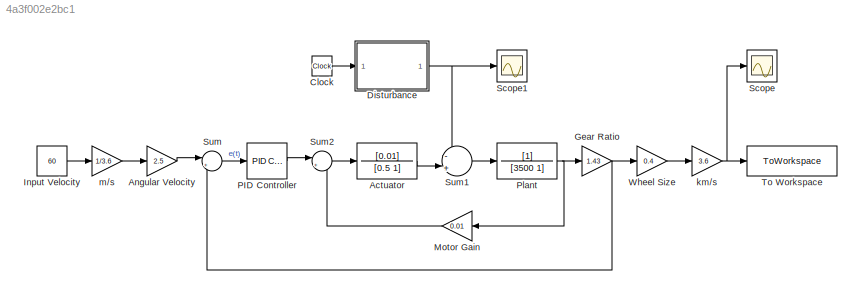
MODEL slx_4a3f002e2bc1
KIND model
CONFIG AbsTol = auto
CONFIG EnableMultiTasking = off
CONFIG FixedStep = auto
CONFIG MaxStep = auto
CONFIG MinStep = auto
CONFIG RelTol = 1e-3
CONFIG SampleTimeConstraint = Unconstrained
CONFIG SolverName = VariableStepAuto
CONFIG StartTime = 0.0
CONFIG StopTime = 20
BLOCK [TransferFcn] Actuator
  Denominator = [0.5 1]
  Numerator = [0.01]
BLOCK [Gain] Angular Velocity
  Gain = 2.5
BLOCK [Clock] Clock
  DisplayTime = on
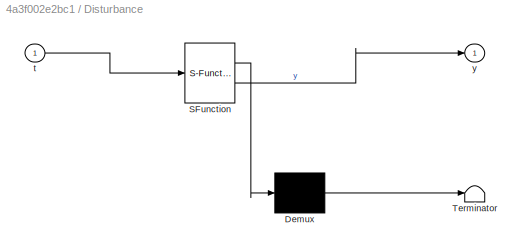
BLOCK [SubSystem] Disturbance
  ErrorFcn = Stateflow.Translate.translate
  PermitHierarchicalResolution = ExplicitOnly
  Ports = [1, 1]
  RequestExecContextInheritance = off
  SFBlockType = MATLAB Function
  TreatAsAtomicUnit = on
BLOCK [Demux] Disturbance/ Demux 
  Outputs = 1
  Ports = [1, 1]
BLOCK [S-Function] Disturbance/ SFunction 
  EnableBusSupport = on
  FunctionName = sf_sfun
  PortCounts = [1 2]
  Ports = [1, 2]
  SFcnIsStateOwnerBlock = off
  SFunctionDeploymentMode = off
  Tag = Stateflow S-Function 2
BLOCK [Terminator] Disturbance/ Terminator 
BLOCK [Inport] Disturbance/t
BLOCK [Outport] Disturbance/y
BLOCK [Gain] Gear Ratio
  Gain = 1.43
BLOCK [Constant] Input Velocity
  Value = 60
BLOCK [Gain] Motor Gain
  Gain = 0.01
BLOCK [Reference] PID Controller  REF=pid_lib/PID Controller
  Ports = [1, 1]
  SourceBlock = pid_lib/PID Controller
  SourceProductBaseCode = SL
  SourceType = PID 1dof
BLOCK [TransferFcn] Plant
  Denominator = [3500 1]
BLOCK [Scope] Scope
  Floating = off
  NumInputPorts = 1
  Ports = [1]
  ScopeSpecificationString = Simulink.scopes.TimeScopeBlockCfg('CurrentConfiguration', extmgr.ConfigurationSet(extmgr.Configuration('Core','General UI',true),extmgr.Configuration('Core','Source UI',true),extmgr.Configuration('Sources','WiredSimulink',true),extmgr.Configuration('Visuals','Time Domain',true,'SerializedDisplays',{struct('MinYLimReal','-44.23701','MaxYLimReal','27.84897','YLabelReal','','MinYLimMag','0.00000','Ma...<+1404ch>
BLOCK [Scope] Scope1
  Floating = off
  NumInputPorts = 1
  Ports = [1]
  ScopeSpecificationString = Simulink.scopes.TimeScopeBlockCfg('CurrentConfiguration', extmgr.ConfigurationSet(extmgr.Configuration('Core','General UI',true),extmgr.Configuration('Core','Source UI',true),extmgr.Configuration('Sources','WiredSimulink',true,'DataLoggingVariableName','ScopeData1'),extmgr.Configuration('Visuals','Time Domain',true,'SerializedDisplays',{struct('MinYLimReal','-10027.98355','MaxYLimReal','9479.29355...<+1431ch>
BLOCK [Sum] Sum
  Inputs = |+-
  Ports = [2, 1]
BLOCK [Sum] Sum1
  Inputs = -|+||
  Ports = [2, 1]
BLOCK [Sum] Sum2
  Inputs = |+-
  Ports = [2, 1]
BLOCK [ToWorkspace] To Workspace
  FixptAsFi = on
  MaxDataPoints = inf
  Ports = [1]
  SampleTime = -1
  SaveFormat = Timeseries
  VariableName = simout
BLOCK [Gain] Wheel Size
  Gain = 0.4
BLOCK [Gain] km//s
  Gain = 3.6
BLOCK [Gain] m//s
  Gain = 1/3.6
LINE Actuator:1 -> Sum1:2
LINE Angular Velocity:1 -> Sum:1
LINE Clock:1 -> Disturbance:1
NET Disturbance:1 -> Scope1:1, Sum1:1
NET Gear Ratio:1 -> Sum:2, Wheel Size:1
LINE Input Velocity:1 -> m//s:1
LINE Motor Gain:1 -> Sum2:2
LINE PID Controller:1 -> Sum2:1
NET Plant:1 -> Gear Ratio:1, Motor Gain:1
LINE Sum1:1 -> Plant:1
LINE Sum2:1 -> Actuator:1
LINE Sum:1 -> PID Controller:1
LINE Wheel Size:1 -> km//s:1
NET km//s:1 -> Scope:1, To Workspace:1
LINE m//s:1 -> Angular Velocity:1
note: NET lines group one-source signal fan-out (src -> all destinations, sorted); 1:1 wires keep LINE
CHART Disturbance states=1 transitions=1
  STATE_LABEL 'eML_blk_kernel()'
  STATE_LABEL 'SCRIPT:\nfunction y = fcn(t)\n    if mod(t, 30) < 10\n        y = randi(5000) * sin(2 * t);\n    elseif mod(t, 30) < 20\n        y = randi(10000) * sin(2 * t);\n    else\n        y = randi(15000) * sin(2 * t);\n    end\nend\n'
CHART  states=0 transitions=0
